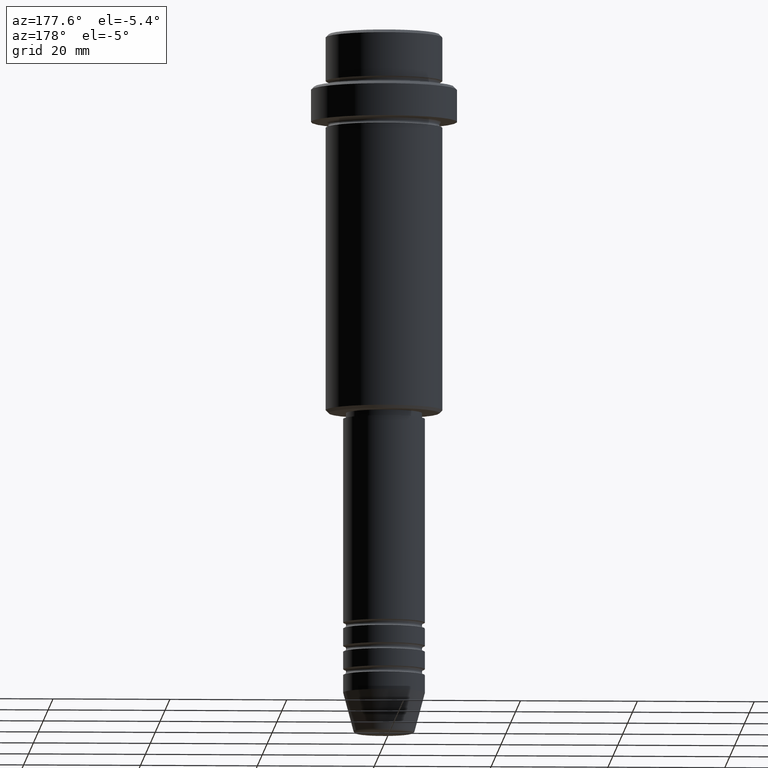
[diagram: clean part render]
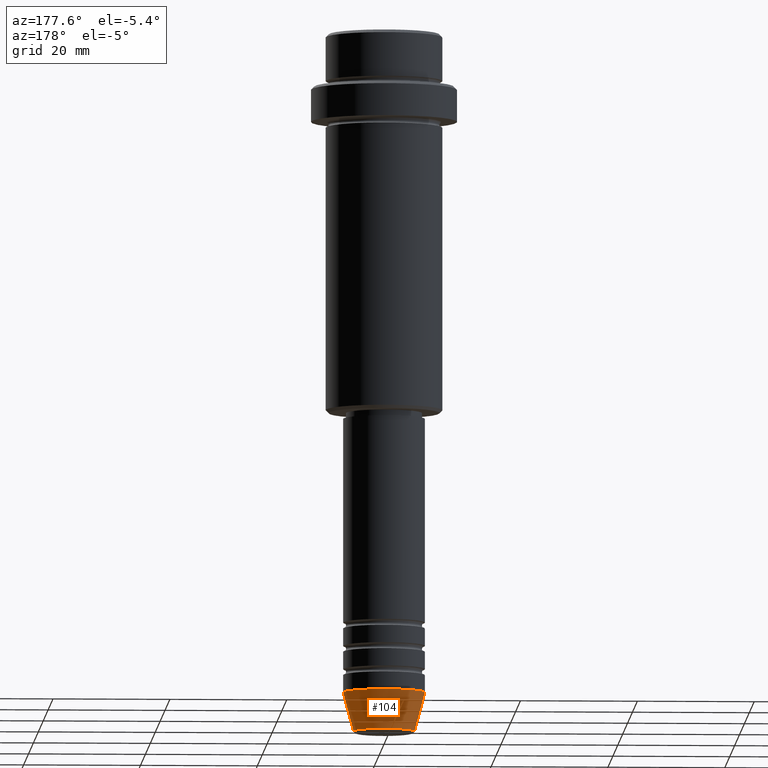
[diagram: same view with one face highlighted and labeled with its STEP entity id]
A machine part, auxiliary view. The second image highlights one B-rep face of the part: STEP entity #104.
In plain terms, the highlighted conical surface has half-angle 15 deg.
Its self-contained STEP definition (entity closure, byte-faithful):
#45 = CARTESIAN_POINT ( 'NONE',  ( 0.000000000000000000, 0.000000000000000000, -119.6294095225512422 ) ) ;
#97 = LINE ( 'NONE', #525, #1252 ) ;
#104 = ADVANCED_FACE ( 'NONE', ( #1335 ), #651, .T. ) ;
#131 = EDGE_CURVE ( 'NONE', #250, #867, #914, .T. ) ;
#135 = DIRECTION ( 'NONE',  ( -0.000000000000000000, -0.000000000000000000, 1.000000000000000000 ) ) ;
#250 = VERTEX_POINT ( 'NONE', #966 ) ;
#354 = EDGE_LOOP ( 'NONE', ( #1159, #1283, #770, #1242 ) ) ;
#421 = AXIS2_PLACEMENT_3D ( 'NONE', #45, #135, #689 ) ;
#470 = VECTOR ( 'NONE', #958, 1000.000000000000000 ) ;
#504 = CARTESIAN_POINT ( 'NONE',  ( 7.000000000000000000, 0.000000000000000000, -113.0000000000000000 ) ) ;
#508 = DIRECTION ( 'NONE',  ( -0.000000000000000000, -0.000000000000000000, 1.000000000000000000 ) ) ;
#525 = CARTESIAN_POINT ( 'NONE',  ( -7.000000000000000000, 8.572527594031473190E-16, -113.0000000000000000 ) ) ;
#568 = EDGE_CURVE ( 'NONE', #830, #250, #1061, .T. ) ;
#570 = DIRECTION ( 'NONE',  ( 1.000000000000000000, 0.000000000000000000, 0.000000000000000000 ) ) ;
#582 = CARTESIAN_POINT ( 'NONE',  ( -5.223655072137196598, 7.484830028987063133E-16, -119.6294095225512422 ) ) ;
#631 = DIRECTION ( 'NONE',  ( 1.000000000000000000, 0.000000000000000000, 0.000000000000000000 ) ) ;
#651 = CONICAL_SURFACE ( 'NONE', #1057, 7.000000000000000000, 0.2617993877991500740 ) ;
#689 = DIRECTION ( 'NONE',  ( 1.000000000000000000, 0.000000000000000000, 0.000000000000000000 ) ) ;
#758 = EDGE_CURVE ( 'NONE', #1306, #867, #97, .T. ) ;
#770 = ORIENTED_EDGE ( 'NONE', *, *, #131, .F. ) ;
#777 = CARTESIAN_POINT ( 'NONE',  ( 5.223655072137196598, 0.000000000000000000, -119.6294095225512422 ) ) ;
#830 = VERTEX_POINT ( 'NONE', #777 ) ;
#867 = VERTEX_POINT ( 'NONE', #1130 ) ;
#901 = EDGE_CURVE ( 'NONE', #830, #1306, #1387, .T. ) ;
#914 = CIRCLE ( 'NONE', #1383, 7.000000000000000000 ) ;
#958 = DIRECTION ( 'NONE',  ( 0.2588190451025213501, 0.000000000000000000, 0.9659258262890680902 ) ) ;
#966 = CARTESIAN_POINT ( 'NONE',  ( 7.000000000000000000, 0.000000000000000000, -113.0000000000000000 ) ) ;
#972 = CARTESIAN_POINT ( 'NONE',  ( 0.000000000000000000, 0.000000000000000000, -113.0000000000000000 ) ) ;
#979 = DIRECTION ( 'NONE',  ( -0.2588190451025213501, 3.169619151431772337E-17, 0.9659258262890680902 ) ) ;
#1021 = CARTESIAN_POINT ( 'NONE',  ( 0.000000000000000000, 0.000000000000000000, -113.0000000000000000 ) ) ;
#1057 = AXIS2_PLACEMENT_3D ( 'NONE', #1021, #1330, #570 ) ;
#1061 = LINE ( 'NONE', #504, #470 ) ;
#1130 = CARTESIAN_POINT ( 'NONE',  ( -7.000000000000000000, 8.572527594031473190E-16, -113.0000000000000000 ) ) ;
#1159 = ORIENTED_EDGE ( 'NONE', *, *, #901, .T. ) ;
#1242 = ORIENTED_EDGE ( 'NONE', *, *, #568, .F. ) ;
#1252 = VECTOR ( 'NONE', #979, 1000.000000000000000 ) ;
#1283 = ORIENTED_EDGE ( 'NONE', *, *, #758, .T. ) ;
#1306 = VERTEX_POINT ( 'NONE', #582 ) ;
#1330 = DIRECTION ( 'NONE',  ( -0.000000000000000000, -0.000000000000000000, 1.000000000000000000 ) ) ;
#1335 = FACE_OUTER_BOUND ( 'NONE', #354, .T. ) ;
#1383 = AXIS2_PLACEMENT_3D ( 'NONE', #972, #508, #631 ) ;
#1387 = CIRCLE ( 'NONE', #421, 5.223655072137196598 ) ;